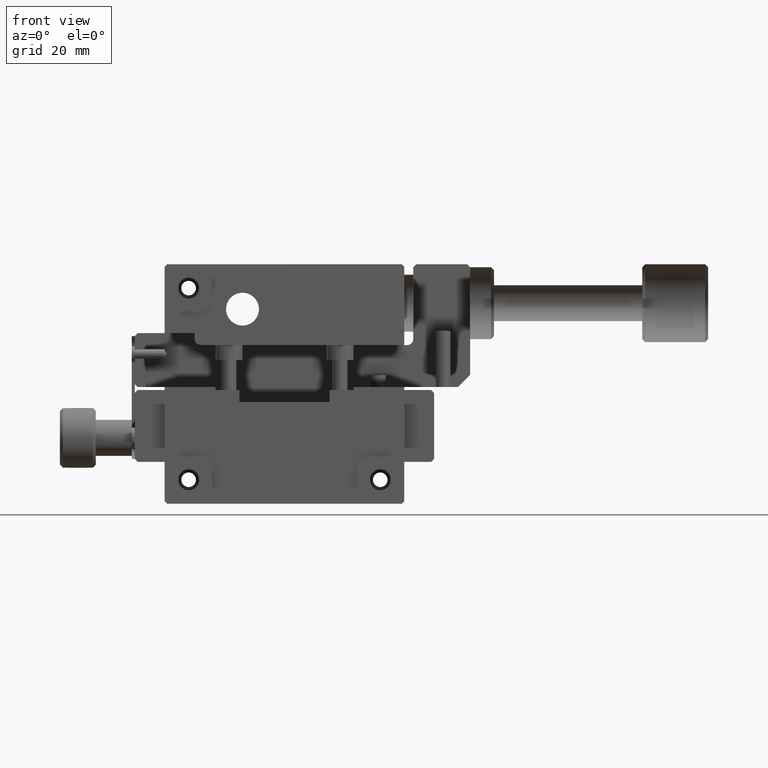
[diagram: clean part render]
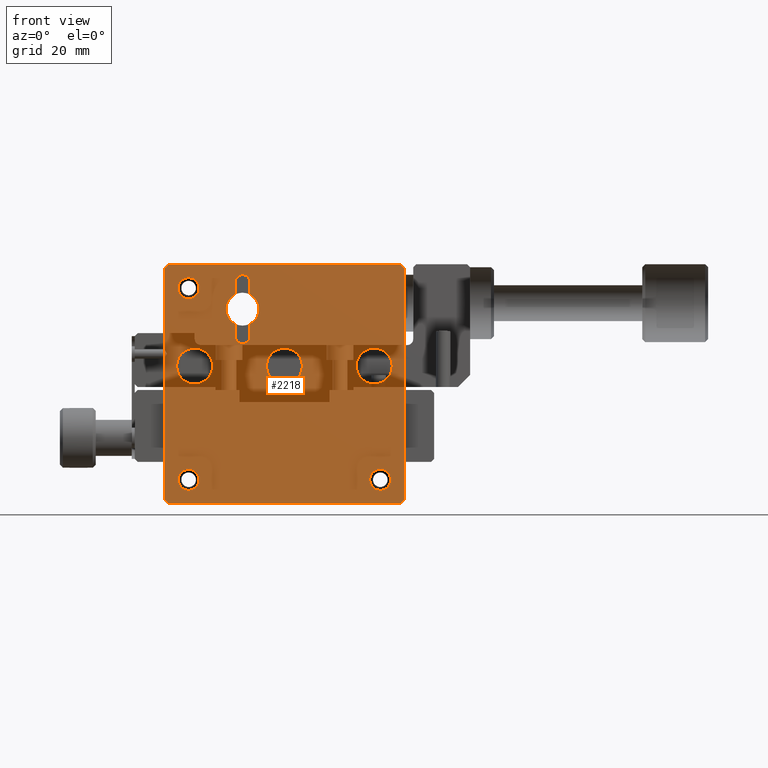
[diagram: same view with one face highlighted and labeled with its STEP entity id]
A machine part, front view. The second image highlights one B-rep face of the part: STEP entity #2218.
In plain terms, the highlighted planar face has unit normal (0, 1, 0).
Its self-contained STEP definition (entity closure, byte-faithful):
#84 = CIRCLE ( 'NONE', #1954, 2.999999999999988898 ) ;
#130 = CARTESIAN_POINT ( 'NONE',  ( 14.25000000000000000, 0.000000000000000000, -5.050510257216821230 ) ) ;
#280 = VERTEX_POINT ( 'NONE', #5990 ) ;
#304 = EDGE_CURVE ( 'NONE', #5717, #1319, #3962, .T. ) ;
#314 = LINE ( 'NONE', #2541, #3808 ) ;
#366 = AXIS2_PLACEMENT_3D ( 'NONE', #958, #7948, #8853 ) ;
#470 = CARTESIAN_POINT ( 'NONE',  ( 14.24999999999999822, 0.000000000000000000, -9.949489742783176993 ) ) ;
#483 = DIRECTION ( 'NONE',  ( 0.000000000000000000, 0.000000000000000000, -1.000000000000000000 ) ) ;
#489 = LINE ( 'NONE', #3890, #2767 ) ;
#569 = LINE ( 'NONE', #6989, #574 ) ;
#574 = VECTOR ( 'NONE', #6184, 1000.000000000000000 ) ;
#575 = DIRECTION ( 'NONE',  ( 1.334237057991860001E-15, -1.000000000000000000, 0.000000000000000000 ) ) ;
#600 = EDGE_CURVE ( 'NONE', #7593, #9407, #3515, .T. ) ;
#612 = EDGE_CURVE ( 'NONE', #1319, #1846, #314, .T. ) ;
#632 = VERTEX_POINT ( 'NONE', #1803 ) ;
#740 = AXIS2_PLACEMENT_3D ( 'NONE', #3683, #10264, #4584 ) ;
#787 = VERTEX_POINT ( 'NONE', #470 ) ;
#958 = CARTESIAN_POINT ( 'NONE',  ( 35.00000000000000000, -4.002711173975572310E-15, -17.00000000000000000 ) ) ;
#1179 = ORIENTED_EDGE ( 'NONE', *, *, #10199, .F. ) ;
#1184 = VERTEX_POINT ( 'NONE', #5409 ) ;
#1226 = CIRCLE ( 'NONE', #7044, 1.750000000000001554 ) ;
#1290 = DIRECTION ( 'NONE',  ( 0.000000000000000000, -0.000000000000000000, 1.000000000000000000 ) ) ;
#1297 = VERTEX_POINT ( 'NONE', #7348 ) ;
#1319 = VERTEX_POINT ( 'NONE', #6546 ) ;
#1360 = CARTESIAN_POINT ( 'NONE',  ( 13.00000000000000178, 0.000000000000000000, -7.500000000000000000 ) ) ;
#1372 = CIRCLE ( 'NONE', #9766, 1.249999999999999334 ) ;
#1414 = EDGE_CURVE ( 'NONE', #1706, #4143, #7453, .T. ) ;
#1423 = CARTESIAN_POINT ( 'NONE',  ( 20.00000000000000000, -4.002711173975577832E-15, -17.00000000000000000 ) ) ;
#1529 = VERTEX_POINT ( 'NONE', #2890 ) ;
#1599 = VECTOR ( 'NONE', #4405, 1000.000000000000000 ) ;
#1667 = CARTESIAN_POINT ( 'NONE',  ( 0.000000000000000000, 0.000000000000000000, 1.084202172485499997E-16 ) ) ;
#1687 = EDGE_CURVE ( 'NONE', #1184, #1184, #1226, .T. ) ;
#1706 = VERTEX_POINT ( 'NONE', #5668 ) ;
#1711 = DIRECTION ( 'NONE',  ( 0.000000000000000000, -0.000000000000000000, 1.000000000000000000 ) ) ;
#1780 = DIRECTION ( 'NONE',  ( 1.000000000000000000, 0.000000000000000000, -0.000000000000000000 ) ) ;
#1781 = ORIENTED_EDGE ( 'NONE', *, *, #10014, .T. ) ;
#1803 = CARTESIAN_POINT ( 'NONE',  ( 14.25000000000000000, 0.000000000000000000, -12.00000000000000000 ) ) ;
#1846 = VERTEX_POINT ( 'NONE', #9366 ) ;
#1890 = CARTESIAN_POINT ( 'NONE',  ( 14.25000000000000000, 0.000000000000000000, 0.000000000000000000 ) ) ;
#1915 = VERTEX_POINT ( 'NONE', #3254 ) ;
#1937 = CARTESIAN_POINT ( 'NONE',  ( 14.25000000000000000, 0.000000000000000000, -3.000000000000000000 ) ) ;
#1954 = AXIS2_PLACEMENT_3D ( 'NONE', #1423, #5322, #5541 ) ;
#2047 = CARTESIAN_POINT ( 'NONE',  ( 11.75000000000000000, 0.000000000000000000, -9.949489742783176993 ) ) ;
#2087 = VERTEX_POINT ( 'NONE', #4554 ) ;
#2120 = EDGE_CURVE ( 'NONE', #9384, #9384, #4976, .T. ) ;
#2156 = CARTESIAN_POINT ( 'NONE',  ( 39.28999999999999204, 0.000000000000000000, 4.540096597283048831E-16 ) ) ;
#2168 = CARTESIAN_POINT ( 'NONE',  ( 5.000000000000009770, -4.002711173975584932E-15, -17.00000000000000000 ) ) ;
#2209 = EDGE_LOOP ( 'NONE', ( #8533 ) ) ;
#2218 = ADVANCED_FACE ( 'NONE', ( #7575, #9998, #2695, #9938, #2585, #9400, #4458, #6987 ), #10248, .T. ) ;
#2220 = VERTEX_POINT ( 'NONE', #2047 ) ;
#2376 = EDGE_CURVE ( 'NONE', #2220, #9651, #2418, .T. ) ;
#2406 = AXIS2_PLACEMENT_3D ( 'NONE', #4368, #4471, #6896 ) ;
#2418 = LINE ( 'NONE', #2475, #7230 ) ;
#2463 = CIRCLE ( 'NONE', #4511, 2.749999999999999112 ) ;
#2475 = CARTESIAN_POINT ( 'NONE',  ( 11.75000000000000000, 0.000000000000000000, 0.000000000000000000 ) ) ;
#2533 = DIRECTION ( 'NONE',  ( 0.000000000000000000, 0.000000000000000000, -1.000000000000000000 ) ) ;
#2541 = CARTESIAN_POINT ( 'NONE',  ( 11.75000000000000000, 0.000000000000000000, 0.000000000000000000 ) ) ;
#2571 = ORIENTED_EDGE ( 'NONE', *, *, #7868, .T. ) ;
#2585 = FACE_BOUND ( 'NONE', #4654, .T. ) ;
#2695 = FACE_BOUND ( 'NONE', #2209, .T. ) ;
#2767 = VECTOR ( 'NONE', #1290, 1000.000000000000000 ) ;
#2862 = ORIENTED_EDGE ( 'NONE', *, *, #6967, .F. ) ;
#2890 = CARTESIAN_POINT ( 'NONE',  ( 40.00000000000000000, 0.000000000000000000, -0.7100000000000000755 ) ) ;
#3127 = DIRECTION ( 'NONE',  ( 0.000000000000000000, 0.000000000000000000, -1.000000000000000000 ) ) ;
#3254 = CARTESIAN_POINT ( 'NONE',  ( 0.000000000000000000, 0.000000000000000000, -0.7100000000000012967 ) ) ;
#3310 = EDGE_LOOP ( 'NONE', ( #6798 ) ) ;
#3483 = EDGE_LOOP ( 'NONE', ( #3774 ) ) ;
#3492 = VERTEX_POINT ( 'NONE', #4227 ) ;
#3506 = CARTESIAN_POINT ( 'NONE',  ( 4.000000000000000000, 0.000000000000000000, -4.000000000000000000 ) ) ;
#3515 = LINE ( 'NONE', #6619, #10316 ) ;
#3683 = CARTESIAN_POINT ( 'NONE',  ( 13.00000000000000178, 0.000000000000000000, -7.500000000000000000 ) ) ;
#3712 = CARTESIAN_POINT ( 'NONE',  ( 0.000000000000000000, 0.000000000000000000, 0.000000000000000000 ) ) ;
#3729 = DIRECTION ( 'NONE',  ( 0.7071067811865474617, 0.000000000000000000, 0.7071067811865474617 ) ) ;
#3774 = ORIENTED_EDGE ( 'NONE', *, *, #1687, .T. ) ;
#3777 = EDGE_CURVE ( 'NONE', #4255, #4255, #84, .T. ) ;
#3808 = VECTOR ( 'NONE', #10106, 1000.000000000000000 ) ;
#3828 = DIRECTION ( 'NONE',  ( 1.000000000000000000, 1.334237057991859409E-15, 0.000000000000000000 ) ) ;
#3852 = EDGE_CURVE ( 'NONE', #1846, #2220, #2463, .T. ) ;
#3879 = LINE ( 'NONE', #9577, #7563 ) ;
#3890 = CARTESIAN_POINT ( 'NONE',  ( 0.000000000000000000, 0.000000000000000000, 0.000000000000000000 ) ) ;
#3962 = CIRCLE ( 'NONE', #7061, 1.250000000000000222 ) ;
#4071 = ORIENTED_EDGE ( 'NONE', *, *, #3852, .T. ) ;
#4143 = VERTEX_POINT ( 'NONE', #2156 ) ;
#4227 = CARTESIAN_POINT ( 'NONE',  ( 8.000000000000000000, -1.848892746611746419E-29, -17.00000000000000000 ) ) ;
#4255 = VERTEX_POINT ( 'NONE', #5808 ) ;
#4262 = CARTESIAN_POINT ( 'NONE',  ( 0.7100000000000016298, 0.000000000000000000, -40.00000000000000000 ) ) ;
#4315 = ORIENTED_EDGE ( 'NONE', *, *, #5026, .T. ) ;
#4367 = DIRECTION ( 'NONE',  ( 0.7071067811865470176, 0.000000000000000000, -0.7071067811865480168 ) ) ;
#4368 = CARTESIAN_POINT ( 'NONE',  ( 36.00000000000000711, 0.000000000000000000, -36.00000000000000711 ) ) ;
#4404 = LINE ( 'NONE', #5215, #5645 ) ;
#4405 = DIRECTION ( 'NONE',  ( 0.000000000000000000, -0.000000000000000000, 1.000000000000000000 ) ) ;
#4458 = FACE_BOUND ( 'NONE', #7586, .T. ) ;
#4471 = DIRECTION ( 'NONE',  ( 0.000000000000000000, -1.000000000000000000, 0.000000000000000000 ) ) ;
#4476 = ORIENTED_EDGE ( 'NONE', *, *, #9179, .T. ) ;
#4511 = AXIS2_PLACEMENT_3D ( 'NONE', #1360, #4620, #8816 ) ;
#4554 = CARTESIAN_POINT ( 'NONE',  ( 36.00000000000000711, 0.000000000000000000, -37.75000000000000711 ) ) ;
#4584 = DIRECTION ( 'NONE',  ( 0.000000000000000000, 0.000000000000000000, -1.000000000000000000 ) ) ;
#4620 = DIRECTION ( 'NONE',  ( 0.000000000000000000, -1.000000000000000000, 0.000000000000000000 ) ) ;
#4623 = LINE ( 'NONE', #7902, #10141 ) ;
#4654 = EDGE_LOOP ( 'NONE', ( #8523, #10362, #4071, #9041, #1781, #6671, #9541, #9888 ) ) ;
#4680 = DIRECTION ( 'NONE',  ( 0.000000000000000000, 1.000000000000000000, 0.000000000000000000 ) ) ;
#4883 = DIRECTION ( 'NONE',  ( -0.000000000000000000, 0.000000000000000000, -1.000000000000000000 ) ) ;
#4976 = CIRCLE ( 'NONE', #9101, 1.749999999999999778 ) ;
#5026 = EDGE_CURVE ( 'NONE', #1529, #1297, #4623, .T. ) ;
#5066 = ORIENTED_EDGE ( 'NONE', *, *, #1414, .T. ) ;
#5069 = EDGE_CURVE ( 'NONE', #3492, #3492, #7060, .T. ) ;
#5215 = CARTESIAN_POINT ( 'NONE',  ( 0.000000000000000000, 0.000000000000000000, -0.7100000000000009637 ) ) ;
#5322 = DIRECTION ( 'NONE',  ( 1.334237057991860001E-15, -1.000000000000000000, 0.000000000000000000 ) ) ;
#5328 = EDGE_CURVE ( 'NONE', #6729, #5717, #8374, .T. ) ;
#5355 = VECTOR ( 'NONE', #1711, 1000.000000000000000 ) ;
#5409 = CARTESIAN_POINT ( 'NONE',  ( 4.000000000000000000, 0.000000000000000000, -37.75000000000000711 ) ) ;
#5420 = LINE ( 'NONE', #8692, #6003 ) ;
#5513 = CIRCLE ( 'NONE', #740, 2.749999999999999112 ) ;
#5541 = DIRECTION ( 'NONE',  ( 1.000000000000000000, 1.334237057991860198E-15, 0.000000000000000000 ) ) ;
#5544 = DIRECTION ( 'NONE',  ( -0.000000000000000000, 0.000000000000000000, -1.000000000000000000 ) ) ;
#5593 = EDGE_CURVE ( 'NONE', #632, #787, #9876, .T. ) ;
#5645 = VECTOR ( 'NONE', #9185, 1000.000000000000000 ) ;
#5668 = CARTESIAN_POINT ( 'NONE',  ( 0.7099999999999999645, 0.000000000000000000, -5.416677968589100837E-32 ) ) ;
#5717 = VERTEX_POINT ( 'NONE', #1937 ) ;
#5808 = CARTESIAN_POINT ( 'NONE',  ( 22.99999999999998934, -1.155557966632341512E-29, -17.00000000000000000 ) ) ;
#5918 = ORIENTED_EDGE ( 'NONE', *, *, #2120, .T. ) ;
#5962 = DIRECTION ( 'NONE',  ( 0.000000000000000000, -1.000000000000000000, 0.000000000000000000 ) ) ;
#5990 = CARTESIAN_POINT ( 'NONE',  ( 37.99999999999999289, -6.162975822039154730E-30, -17.00000000000000000 ) ) ;
#6003 = VECTOR ( 'NONE', #7137, 999.9999999999998863 ) ;
#6184 = DIRECTION ( 'NONE',  ( -1.000000000000000000, -0.000000000000000000, 0.000000000000000000 ) ) ;
#6323 = DIRECTION ( 'NONE',  ( 0.000000000000000000, -1.000000000000000000, 0.000000000000000000 ) ) ;
#6496 = CARTESIAN_POINT ( 'NONE',  ( 13.00000000000000178, 0.000000000000000000, -12.00000000000000000 ) ) ;
#6504 = CIRCLE ( 'NONE', #366, 2.999999999999988898 ) ;
#6546 = CARTESIAN_POINT ( 'NONE',  ( 11.75000000000000000, 0.000000000000000000, -2.999999999999999556 ) ) ;
#6619 = CARTESIAN_POINT ( 'NONE',  ( 0.7100000000000009637, 0.000000000000000000, -40.00000000000000000 ) ) ;
#6658 = EDGE_CURVE ( 'NONE', #2087, #2087, #7035, .T. ) ;
#6671 = ORIENTED_EDGE ( 'NONE', *, *, #5593, .T. ) ;
#6729 = VERTEX_POINT ( 'NONE', #130 ) ;
#6798 = ORIENTED_EDGE ( 'NONE', *, *, #5069, .T. ) ;
#6896 = DIRECTION ( 'NONE',  ( 0.000000000000000000, 0.000000000000000000, -1.000000000000000000 ) ) ;
#6933 = ORIENTED_EDGE ( 'NONE', *, *, #600, .F. ) ;
#6967 = EDGE_CURVE ( 'NONE', #1529, #4143, #5420, .T. ) ;
#6987 = FACE_BOUND ( 'NONE', #7275, .T. ) ;
#6989 = CARTESIAN_POINT ( 'NONE',  ( 0.000000000000000000, 0.000000000000000000, -40.00000000000000000 ) ) ;
#7035 = CIRCLE ( 'NONE', #2406, 1.750000000000001554 ) ;
#7044 = AXIS2_PLACEMENT_3D ( 'NONE', #9599, #6323, #7983 ) ;
#7060 = CIRCLE ( 'NONE', #7573, 2.999999999999990674 ) ;
#7061 = AXIS2_PLACEMENT_3D ( 'NONE', #10329, #10221, #483 ) ;
#7137 = DIRECTION ( 'NONE',  ( -0.7071067811865486830, 0.000000000000000000, 0.7071067811865464625 ) ) ;
#7230 = VECTOR ( 'NONE', #4883, 1000.000000000000000 ) ;
#7275 = EDGE_LOOP ( 'NONE', ( #8938 ) ) ;
#7348 = CARTESIAN_POINT ( 'NONE',  ( 39.99999999999999289, -1.951563910473907981E-15, -39.29000000000000625 ) ) ;
#7434 = VERTEX_POINT ( 'NONE', #7630 ) ;
#7453 = LINE ( 'NONE', #1667, #10122 ) ;
#7563 = VECTOR ( 'NONE', #3729, 1000.000000000000114 ) ;
#7573 = AXIS2_PLACEMENT_3D ( 'NONE', #2168, #575, #3828 ) ;
#7575 = FACE_OUTER_BOUND ( 'NONE', #10428, .T. ) ;
#7586 = EDGE_LOOP ( 'NONE', ( #4476 ) ) ;
#7593 = VERTEX_POINT ( 'NONE', #8960 ) ;
#7598 = EDGE_LOOP ( 'NONE', ( #5918 ) ) ;
#7630 = CARTESIAN_POINT ( 'NONE',  ( 39.28999999999999915, -1.951563910473907981E-15, -40.00000000000000000 ) ) ;
#7734 = DIRECTION ( 'NONE',  ( 0.000000000000000000, -0.000000000000000000, 1.000000000000000000 ) ) ;
#7824 = CARTESIAN_POINT ( 'NONE',  ( 4.000000000000000000, 0.000000000000000000, -5.750000000000000000 ) ) ;
#7868 = EDGE_CURVE ( 'NONE', #7593, #1915, #489, .T. ) ;
#7902 = CARTESIAN_POINT ( 'NONE',  ( 40.00000000000000000, 0.000000000000000000, 0.000000000000000000 ) ) ;
#7948 = DIRECTION ( 'NONE',  ( 1.334237057991860001E-15, -1.000000000000000000, 0.000000000000000000 ) ) ;
#7983 = DIRECTION ( 'NONE',  ( 0.000000000000000000, 0.000000000000000000, -1.000000000000000000 ) ) ;
#8055 = DIRECTION ( 'NONE',  ( 0.000000000000000000, -1.000000000000000000, 0.000000000000000000 ) ) ;
#8233 = EDGE_CURVE ( 'NONE', #787, #6729, #5513, .T. ) ;
#8311 = EDGE_CURVE ( 'NONE', #7434, #1297, #3879, .T. ) ;
#8374 = LINE ( 'NONE', #1890, #1599 ) ;
#8523 = ORIENTED_EDGE ( 'NONE', *, *, #304, .T. ) ;
#8533 = ORIENTED_EDGE ( 'NONE', *, *, #6658, .T. ) ;
#8555 = ORIENTED_EDGE ( 'NONE', *, *, #8311, .F. ) ;
#8692 = CARTESIAN_POINT ( 'NONE',  ( 39.28999999999999915, 0.000000000000000000, 0.000000000000000000 ) ) ;
#8777 = EDGE_CURVE ( 'NONE', #7434, #9407, #569, .T. ) ;
#8816 = DIRECTION ( 'NONE',  ( 0.000000000000000000, 0.000000000000000000, -1.000000000000000000 ) ) ;
#8853 = DIRECTION ( 'NONE',  ( 1.000000000000000000, 1.334237057991860198E-15, 0.000000000000000000 ) ) ;
#8938 = ORIENTED_EDGE ( 'NONE', *, *, #3777, .T. ) ;
#8960 = CARTESIAN_POINT ( 'NONE',  ( -1.490777987167568597E-16, 0.000000000000000000, -39.28999999999999915 ) ) ;
#9012 = CARTESIAN_POINT ( 'NONE',  ( 14.25000000000000000, 0.000000000000000000, 0.000000000000000000 ) ) ;
#9041 = ORIENTED_EDGE ( 'NONE', *, *, #2376, .T. ) ;
#9101 = AXIS2_PLACEMENT_3D ( 'NONE', #3506, #5962, #2533 ) ;
#9179 = EDGE_CURVE ( 'NONE', #280, #280, #6504, .T. ) ;
#9185 = DIRECTION ( 'NONE',  ( -0.7071067811865470176, 0.000000000000000000, -0.7071067811865480168 ) ) ;
#9366 = CARTESIAN_POINT ( 'NONE',  ( 11.75000000000000000, 0.000000000000000000, -5.050510257216821230 ) ) ;
#9384 = VERTEX_POINT ( 'NONE', #7824 ) ;
#9400 = FACE_BOUND ( 'NONE', #3310, .T. ) ;
#9407 = VERTEX_POINT ( 'NONE', #4262 ) ;
#9541 = ORIENTED_EDGE ( 'NONE', *, *, #8233, .T. ) ;
#9577 = CARTESIAN_POINT ( 'NONE',  ( 40.00000000000000000, -3.469446951953614189E-15, -39.28999999999999915 ) ) ;
#9599 = CARTESIAN_POINT ( 'NONE',  ( 4.000000000000000000, 0.000000000000000000, -36.00000000000000711 ) ) ;
#9651 = VERTEX_POINT ( 'NONE', #9743 ) ;
#9743 = CARTESIAN_POINT ( 'NONE',  ( 11.75000000000000000, 0.000000000000000000, -12.00000000000000000 ) ) ;
#9766 = AXIS2_PLACEMENT_3D ( 'NONE', #6496, #8055, #3127 ) ;
#9876 = LINE ( 'NONE', #9012, #5355 ) ;
#9888 = ORIENTED_EDGE ( 'NONE', *, *, #5328, .T. ) ;
#9938 = FACE_BOUND ( 'NONE', #3483, .T. ) ;
#9998 = FACE_BOUND ( 'NONE', #7598, .T. ) ;
#10014 = EDGE_CURVE ( 'NONE', #9651, #632, #1372, .T. ) ;
#10106 = DIRECTION ( 'NONE',  ( -0.000000000000000000, 0.000000000000000000, -1.000000000000000000 ) ) ;
#10122 = VECTOR ( 'NONE', #1780, 1000.000000000000000 ) ;
#10141 = VECTOR ( 'NONE', #5544, 1000.000000000000000 ) ;
#10199 = EDGE_CURVE ( 'NONE', #1706, #1915, #4404, .T. ) ;
#10221 = DIRECTION ( 'NONE',  ( 0.000000000000000000, -1.000000000000000000, 0.000000000000000000 ) ) ;
#10248 = PLANE ( 'NONE',  #10303 ) ;
#10264 = DIRECTION ( 'NONE',  ( 0.000000000000000000, -1.000000000000000000, 0.000000000000000000 ) ) ;
#10303 = AXIS2_PLACEMENT_3D ( 'NONE', #3712, #4680, #7734 ) ;
#10316 = VECTOR ( 'NONE', #4367, 1000.000000000000000 ) ;
#10329 = CARTESIAN_POINT ( 'NONE',  ( 13.00000000000000178, 0.000000000000000000, -3.000000000000000000 ) ) ;
#10362 = ORIENTED_EDGE ( 'NONE', *, *, #612, .T. ) ;
#10428 = EDGE_LOOP ( 'NONE', ( #6933, #2571, #1179, #5066, #2862, #4315, #8555, #10559 ) ) ;
#10559 = ORIENTED_EDGE ( 'NONE', *, *, #8777, .T. ) ;